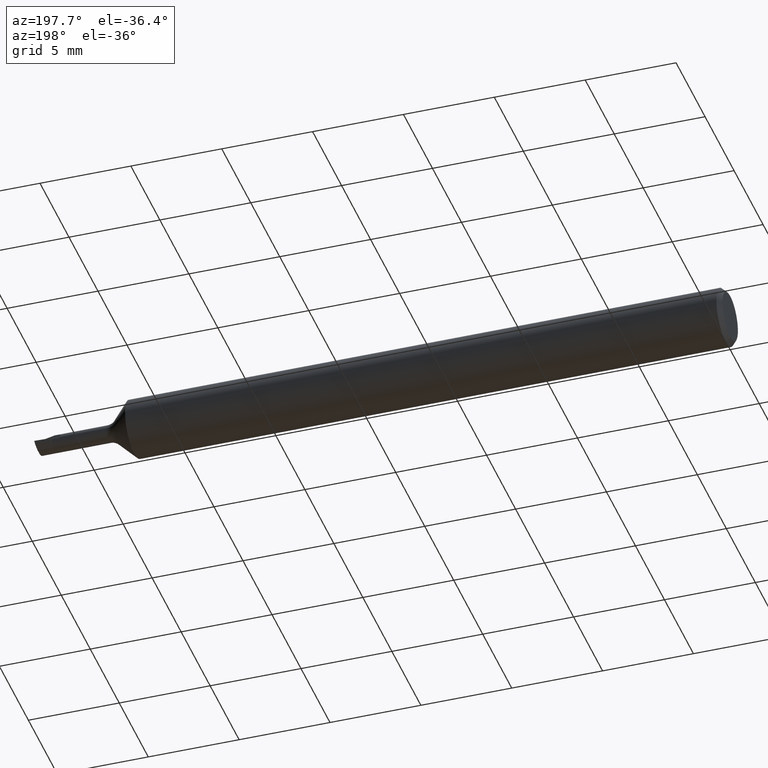
[diagram: clean part render]
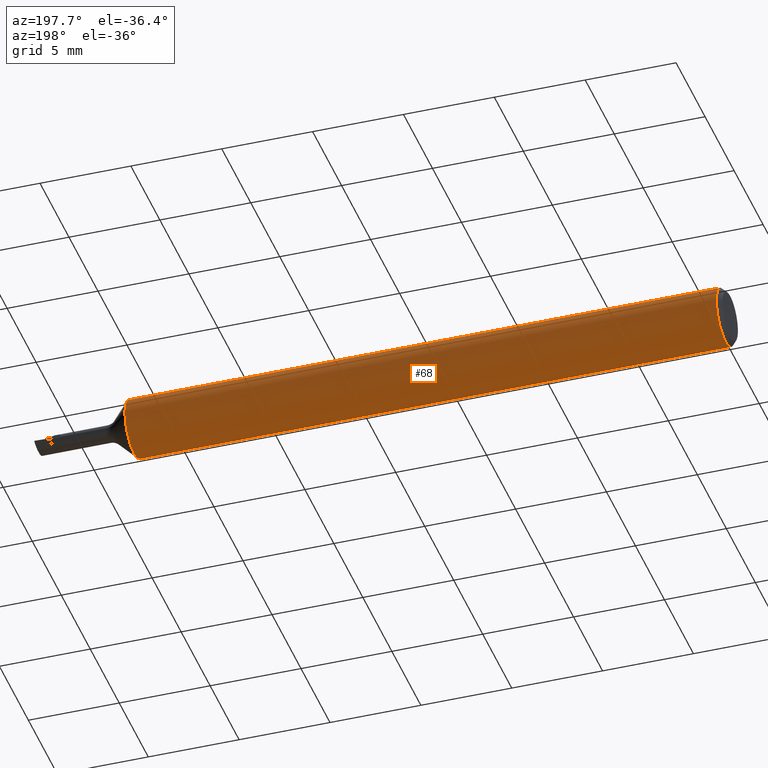
[diagram: same view with one face highlighted and labeled with its STEP entity id]
A machine part, auxiliary view. The second image highlights one B-rep face of the part: STEP entity #68.
In plain terms, the highlighted cylindrical surface (edge-blend (fillet) strip) has radius 1.5837 mm, axis along (-1, -0, -0).
Its self-contained STEP definition (entity closure, byte-faithful):
#9 = ORIENTED_EDGE ( 'NONE', *, *, #112, .T. ) ;
#18 = CARTESIAN_POINT ( 'NONE',  ( 0.01000000000000840841, -0.03386738844395137393, 0.05235000000000001458 ) ) ;
#48 = ORIENTED_EDGE ( 'NONE', *, *, #212, .T. ) ;
#68 = ADVANCED_FACE ( 'NONE', ( #636 ), #552, .T. ) ;
#69 = EDGE_CURVE ( 'NONE', #284, #433, #211, .T. ) ;
#77 = AXIS2_PLACEMENT_3D ( 'NONE', #577, #535, #294 ) ;
#86 = ORIENTED_EDGE ( 'NONE', *, *, #482, .T. ) ;
#97 = DIRECTION ( 'NONE',  ( 0.000000000000000000, 0.000000000000000000, -1.000000000000000000 ) ) ;
#106 = ORIENTED_EDGE ( 'NONE', *, *, #562, .T. ) ;
#112 = EDGE_CURVE ( 'NONE', #433, #146, #403, .T. ) ;
#124 = AXIS2_PLACEMENT_3D ( 'NONE', #149, #262, #194 ) ;
#136 = DIRECTION ( 'NONE',  ( 0.000000000000000000, 0.000000000000000000, -1.000000000000000000 ) ) ;
#145 = DIRECTION ( 'NONE',  ( 1.000000000000000000, 0.000000000000000000, 0.000000000000000000 ) ) ;
#146 = VERTEX_POINT ( 'NONE', #251 ) ;
#149 = CARTESIAN_POINT ( 'NONE',  ( 0.000000000000000000, 0.000000000000000000, 0.000000000000000000 ) ) ;
#151 = DIRECTION ( 'NONE',  ( 1.000000000000000000, 0.000000000000000000, 0.000000000000000000 ) ) ;
#157 = VECTOR ( 'NONE', #145, 39.37007874015748143 ) ;
#178 = DIRECTION ( 'NONE',  ( -1.000000000000000000, -0.000000000000000000, -0.000000000000000000 ) ) ;
#184 = AXIS2_PLACEMENT_3D ( 'NONE', #441, #178, #574 ) ;
#194 = DIRECTION ( 'NONE',  ( 0.000000000000000000, 0.000000000000000000, 1.000000000000000000 ) ) ;
#211 = CIRCLE ( 'NONE', #306, 0.06235000000000000264 ) ;
#212 = EDGE_CURVE ( 'NONE', #444, #284, #570, .T. ) ;
#214 = ORIENTED_EDGE ( 'NONE', *, *, #471, .T. ) ;
#251 = CARTESIAN_POINT ( 'NONE',  ( 1.291150000000000242, 0.03386738844375220686, 0.05235000000000000070 ) ) ;
#262 = DIRECTION ( 'NONE',  ( -1.000000000000000000, -0.000000000000000000, -0.000000000000000000 ) ) ;
#278 = CARTESIAN_POINT ( 'NONE',  ( 0.009999999999999890921, 0.03386738844375217911, 0.05235000000000001458 ) ) ;
#284 = VERTEX_POINT ( 'NONE', #512 ) ;
#289 = DIRECTION ( 'NONE',  ( 1.000000000000000000, 0.000000000000000000, 0.000000000000000000 ) ) ;
#294 = DIRECTION ( 'NONE',  ( 0.000000000000000000, 0.000000000000000000, 1.000000000000000000 ) ) ;
#306 = AXIS2_PLACEMENT_3D ( 'NONE', #456, #151, #97 ) ;
#320 = CIRCLE ( 'NONE', #184, 0.06235000000000000264 ) ;
#344 = CARTESIAN_POINT ( 'NONE',  ( 1.291150000000000242, -0.03386738844375220686, 0.05235000000000000070 ) ) ;
#360 = CIRCLE ( 'NONE', #77, 0.06235000000000000264 ) ;
#389 = CARTESIAN_POINT ( 'NONE',  ( 0.009999999999999887451, 0.000000000000000000, 0.000000000000000000 ) ) ;
#403 = LINE ( 'NONE', #589, #157 ) ;
#433 = VERTEX_POINT ( 'NONE', #278 ) ;
#441 = CARTESIAN_POINT ( 'NONE',  ( 1.291150000000000242, 0.000000000000000000, 0.000000000000000000 ) ) ;
#444 = VERTEX_POINT ( 'NONE', #18 ) ;
#446 = VECTOR ( 'NONE', #581, 39.37007874015748143 ) ;
#456 = CARTESIAN_POINT ( 'NONE',  ( 0.009999999999999887451, 0.000000000000000000, 0.000000000000000000 ) ) ;
#463 = VERTEX_POINT ( 'NONE', #491 ) ;
#471 = EDGE_CURVE ( 'NONE', #146, #463, #360, .T. ) ;
#482 = EDGE_CURVE ( 'NONE', #618, #444, #495, .T. ) ;
#491 = CARTESIAN_POINT ( 'NONE',  ( 1.291150000000000242, 7.635672792683746671E-18, -0.06235000000000000264 ) ) ;
#495 = LINE ( 'NONE', #635, #446 ) ;
#512 = CARTESIAN_POINT ( 'NONE',  ( 0.009999999999999887451, 0.000000000000000000, -0.06235000000000000264 ) ) ;
#535 = DIRECTION ( 'NONE',  ( -1.000000000000000000, -0.000000000000000000, -0.000000000000000000 ) ) ;
#552 = CYLINDRICAL_SURFACE ( 'NONE', #124, 0.06235000000000000264 ) ;
#562 = EDGE_CURVE ( 'NONE', #463, #618, #320, .T. ) ;
#570 = CIRCLE ( 'NONE', #622, 0.06235000000000000264 ) ;
#574 = DIRECTION ( 'NONE',  ( 0.000000000000000000, 0.000000000000000000, 1.000000000000000000 ) ) ;
#577 = CARTESIAN_POINT ( 'NONE',  ( 1.291150000000000242, 0.000000000000000000, 0.000000000000000000 ) ) ;
#579 = ORIENTED_EDGE ( 'NONE', *, *, #69, .T. ) ;
#581 = DIRECTION ( 'NONE',  ( -1.000000000000000000, -0.000000000000000000, -0.000000000000000000 ) ) ;
#583 = EDGE_LOOP ( 'NONE', ( #214, #106, #86, #48, #579, #9 ) ) ;
#589 = CARTESIAN_POINT ( 'NONE',  ( 0.000000000000000000, 0.03386738844375220686, 0.05235000000000000070 ) ) ;
#618 = VERTEX_POINT ( 'NONE', #344 ) ;
#622 = AXIS2_PLACEMENT_3D ( 'NONE', #389, #289, #136 ) ;
#635 = CARTESIAN_POINT ( 'NONE',  ( 0.000000000000000000, -0.03386738844375220686, 0.05235000000000000070 ) ) ;
#636 = FACE_OUTER_BOUND ( 'NONE', #583, .T. ) ;